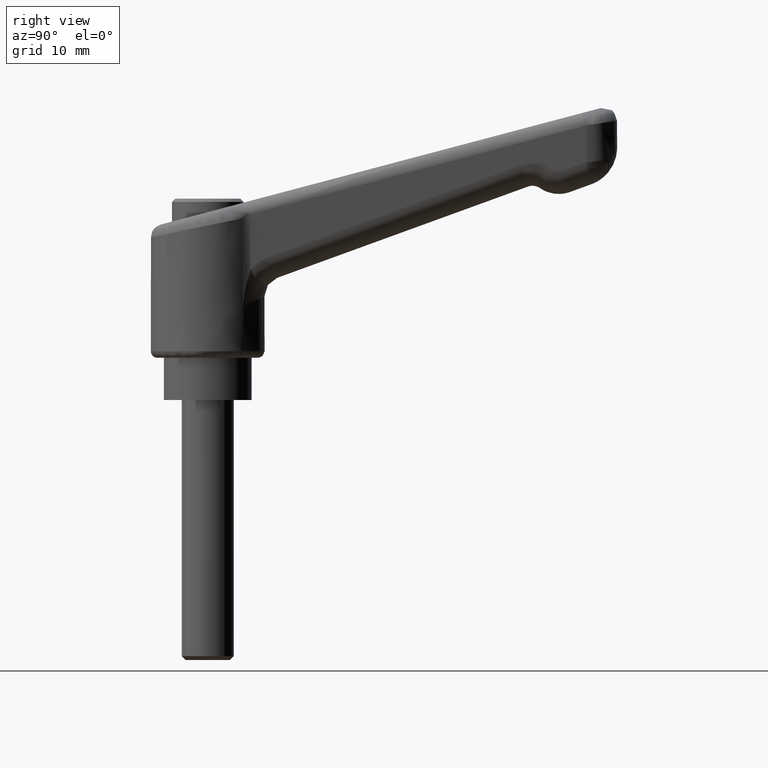
[diagram: clean part render]
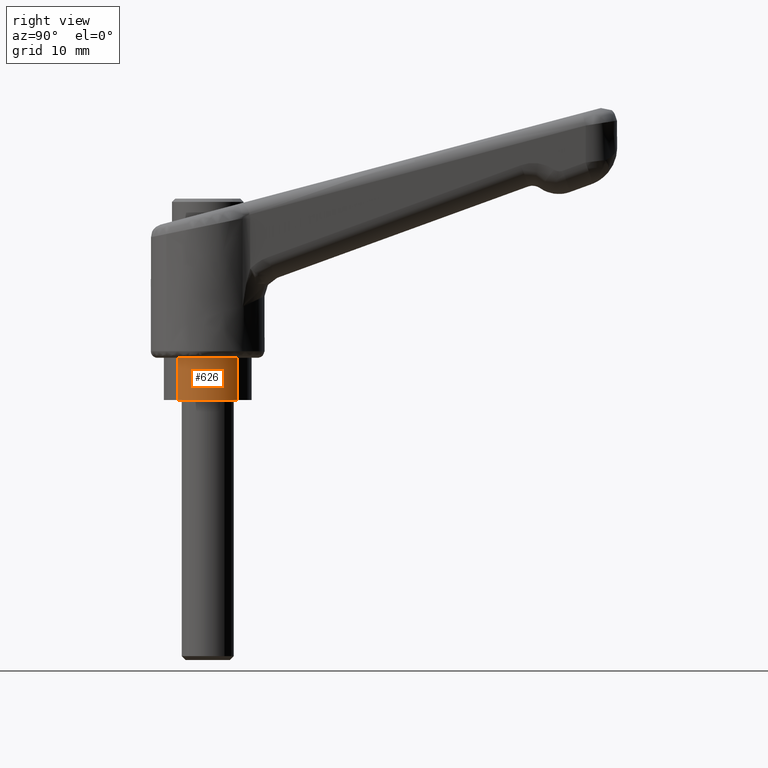
[diagram: same view with one face highlighted and labeled with its STEP entity id]
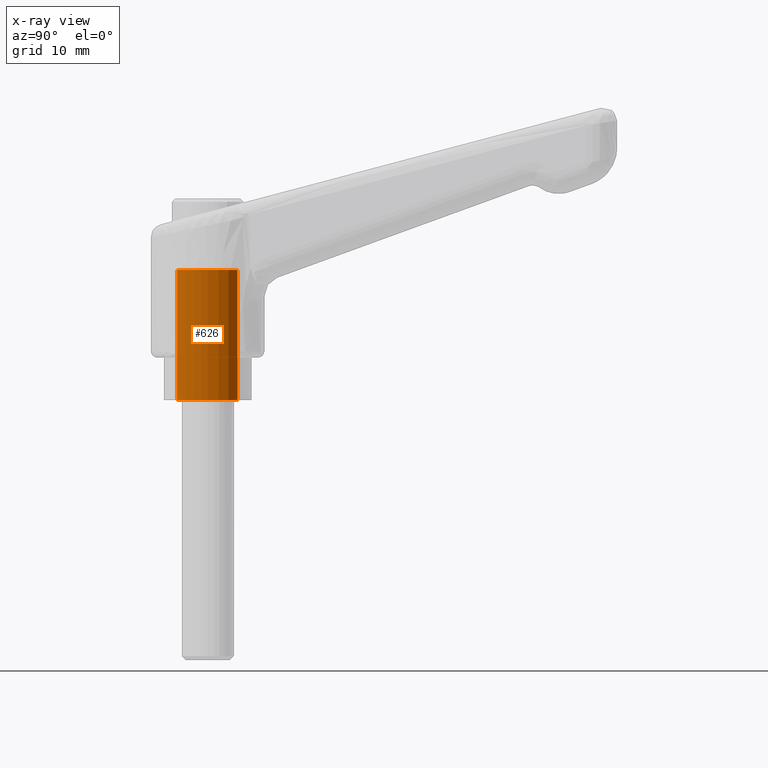
[diagram: x-ray of the same camera — body ghosted, the highlighted face saturated]
A machine part, right view. The second image highlights one B-rep face of the part: STEP entity #626.
The next image is the same camera in x-ray: the body ghosted, the highlighted face saturated — about 0% of this face is hidden behind the body in this view.
In plain terms, the highlighted face is a freeform B-spline surface patch.
Its self-contained STEP definition (entity closure, byte-faithful):
#436=CARTESIAN_POINT('',(-4.707665820029312,-4.837393887982242,1.563105E-013));
#437=VERTEX_POINT('',#436);
#449=CARTESIAN_POINT('',(-4.707665819778807,-4.837393888226028,20.0));
#450=VERTEX_POINT('',#449);
#451=CARTESIAN_POINT('',(-4.707665819778807,-4.837393888226028,20.0));
#452=CARTESIAN_POINT('',(-4.707665820029312,-4.837393887982242,1.563105E-013));
#453=QUASI_UNIFORM_CURVE('',1,(#451,#452),.UNSPECIFIED.,.F.,.U.);
#454=EDGE_CURVE('',#450,#437,#453,.T.);
#501=CARTESIAN_POINT('',(4.560234069154690,-4.976622160059423,20.0));
#502=VERTEX_POINT('',#501);
#513=CARTESIAN_POINT('',(4.560234069446699,-4.976622159791846,-6.905310E-013));
#514=VERTEX_POINT('',#513);
#515=CARTESIAN_POINT('',(4.560234069154690,-4.976622160059423,20.0));
#516=CARTESIAN_POINT('',(4.560234069446699,-4.976622159791846,-6.905310E-013));
#517=QUASI_UNIFORM_CURVE('',1,(#515,#516),.UNSPECIFIED.,.F.,.U.);
#518=EDGE_CURVE('',#502,#514,#517,.T.);
#565=CARTESIAN_POINT('',(4.560233901405705,-4.976622023468336,20.500000000000000));
#566=CARTESIAN_POINT('',(-0.139456225542581,-9.283094595012949,20.500000000000004));
#567=CARTESIAN_POINT('',(-4.707665948634954,-4.837394062515783,20.500000000000004));
#568=CARTESIAN_POINT('',(4.560233901405705,-4.976622023468336,-0.512500000000003));
#569=CARTESIAN_POINT('',(-0.139456225542581,-9.283094595012949,-0.512500000000003));
#570=CARTESIAN_POINT('',(-4.707665948634954,-4.837394062515783,-0.512500000000003));
#578=(BOUNDED_SURFACE()B_SPLINE_SURFACE(2,1,((#565,#568),(#566,#569),(#567,#570)),.UNSPECIFIED.,.F.,.F.,.U.)B_SPLINE_SURFACE_WITH_KNOTS((3,3),(2,2),(0.0,10.733469021284330),(0.0,21.012499999999999),.UNSPECIFIED.)GEOMETRIC_REPRESENTATION_ITEM()RATIONAL_B_SPLINE_SURFACE(((1.0,1.0),(0.718822509939086,0.718822509939086),(0.977505800795127,0.977505800795127)))REPRESENTATION_ITEM('')SURFACE());
#579=CARTESIAN_POINT('',(0.000000859410688,-6.749999999999945,0.0));
#580=VERTEX_POINT('',#579);
#581=CARTESIAN_POINT('',(-4.707665820029312,-4.837393887982242,1.563105E-013));
#582=CARTESIAN_POINT('',(-4.493770073082100,-5.045560386657316,1.492085E-013));
#583=CARTESIAN_POINT('',(-3.934813527169757,-5.521661198884186,1.306492E-013));
#584=CARTESIAN_POINT('',(-3.024416304326844,-6.070700169240821,1.004209E-013));
#585=CARTESIAN_POINT('',(-1.682124064162502,-6.597299213346773,5.585226E-014));
#586=CARTESIAN_POINT('',(-0.678400491247646,-6.750364945480559,2.252523E-014));
#587=CARTESIAN_POINT('',(0.000000859410688,-6.749999999999945,0.0));
#588=B_SPLINE_CURVE_WITH_KNOTS('',3,(#581,#582,#583,#584,#585,#586,#587),.UNSPECIFIED.,.F.,.U.,(4,1,1,1,4),(0.000000014802127,0.895419101017549,2.197865238012589,3.174679782528587,5.209735523415644),.UNSPECIFIED.);
#589=EDGE_CURVE('',#437,#580,#588,.T.);
#590=ORIENTED_EDGE('',*,*,#589,.T.);
#591=CARTESIAN_POINT('',(0.000000859410688,-6.749999999999945,0.0));
#592=CARTESIAN_POINT('',(0.391168692701812,-6.750038774597085,-5.923238E-014));
#593=CARTESIAN_POINT('',(1.095244257093967,-6.688596161775079,-1.658467E-013));
#594=CARTESIAN_POINT('',(2.287705739407499,-6.392632027323512,-3.464145E-013));
#595=CARTESIAN_POINT('',(3.457590269524881,-5.857688731425913,-5.235637E-013));
#596=CARTESIAN_POINT('',(4.233411477792314,-5.276154824915605,-6.410420E-013));
#597=CARTESIAN_POINT('',(4.560234069446699,-4.976622159791846,-6.905310E-013));
#598=B_SPLINE_CURVE_WITH_KNOTS('',3,(#591,#592,#593,#594,#595,#596,#597),.UNSPECIFIED.,.F.,.U.,(4,1,1,1,4),(0.000000014766758,1.173501244268240,2.112306057229587,3.676971519922028,5.006940566074428),.UNSPECIFIED.);
#599=EDGE_CURVE('',#580,#514,#598,.T.);
#600=ORIENTED_EDGE('',*,*,#599,.T.);
#601=ORIENTED_EDGE('',*,*,#518,.F.);
#602=CARTESIAN_POINT('',(0.000000859410688,-6.749999999999945,20.0));
#603=VERTEX_POINT('',#602);
#604=CARTESIAN_POINT('',(0.000000859410688,-6.749999999999945,20.0));
#605=CARTESIAN_POINT('',(0.391167010519490,-6.750034176550667,20.000000000000028));
#606=CARTESIAN_POINT('',(1.095247362353135,-6.688602719879193,20.000000000000011));
#607=CARTESIAN_POINT('',(2.287704133990997,-6.392628855345299,19.999999999999940));
#608=CARTESIAN_POINT('',(3.457590599623470,-5.857689427251676,20.000000000000171));
#609=CARTESIAN_POINT('',(4.233411745134549,-5.276154728067175,19.999999999999869));
#610=CARTESIAN_POINT('',(4.560234069154690,-4.976622160059423,20.0));
#611=B_SPLINE_CURVE_WITH_KNOTS('',3,(#604,#605,#606,#607,#608,#609,#610),.UNSPECIFIED.,.F.,.U.,(4,1,1,1,4),(0.000000014766662,1.173501244175361,2.112306057062473,3.676971519631167,5.006940565678361),.UNSPECIFIED.);
#612=EDGE_CURVE('',#603,#502,#611,.T.);
#613=ORIENTED_EDGE('',*,*,#612,.F.);
#614=CARTESIAN_POINT('',(-4.707665819778807,-4.837393888226028,20.0));
#615=CARTESIAN_POINT('',(-4.221725118044006,-5.310732298171866,20.000000000000039));
#616=CARTESIAN_POINT('',(-3.217113788041262,-6.028966331325917,19.999999999999972));
#617=CARTESIAN_POINT('',(-1.573736265132344,-6.628200679208904,20.0));
#618=CARTESIAN_POINT('',(-0.515548351895235,-6.750094082886815,19.999999999999979));
#619=CARTESIAN_POINT('',(0.000000859410688,-6.749999999999945,20.0));
#620=B_SPLINE_CURVE_WITH_KNOTS('',3,(#614,#615,#616,#617,#618,#619),.UNSPECIFIED.,.F.,.U.,(4,1,1,4),(0.000000014802388,2.035055755558755,3.663094955320949,5.209735523066077),.UNSPECIFIED.);
#621=EDGE_CURVE('',#450,#603,#620,.T.);
#622=ORIENTED_EDGE('',*,*,#621,.F.);
#623=ORIENTED_EDGE('',*,*,#454,.T.);
#624=EDGE_LOOP('',(#590,#600,#601,#613,#622,#623));
#625=FACE_OUTER_BOUND('',#624,.T.);
#626=ADVANCED_FACE('',(#625),#578,.T.);